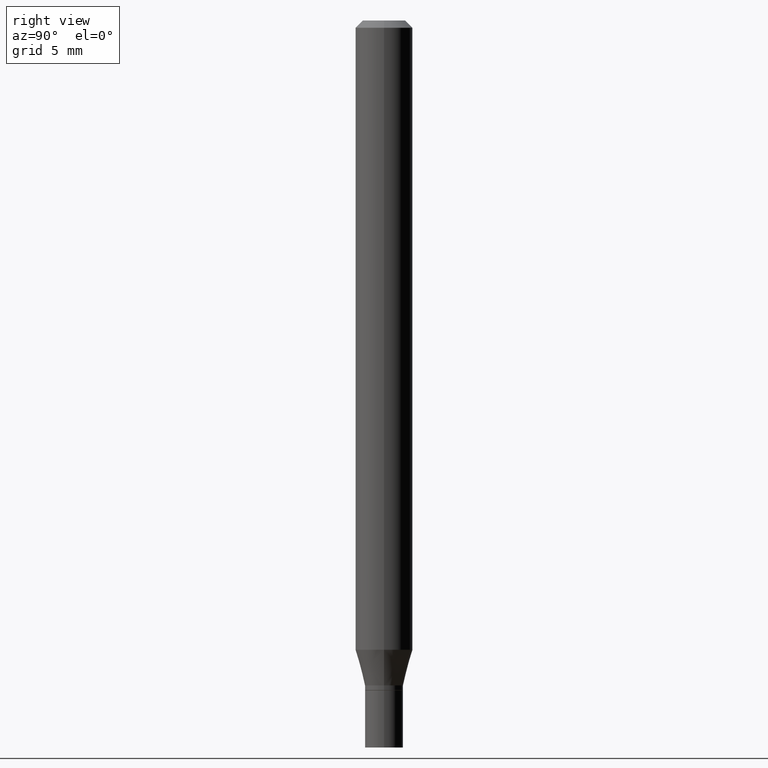
[diagram: clean part render]
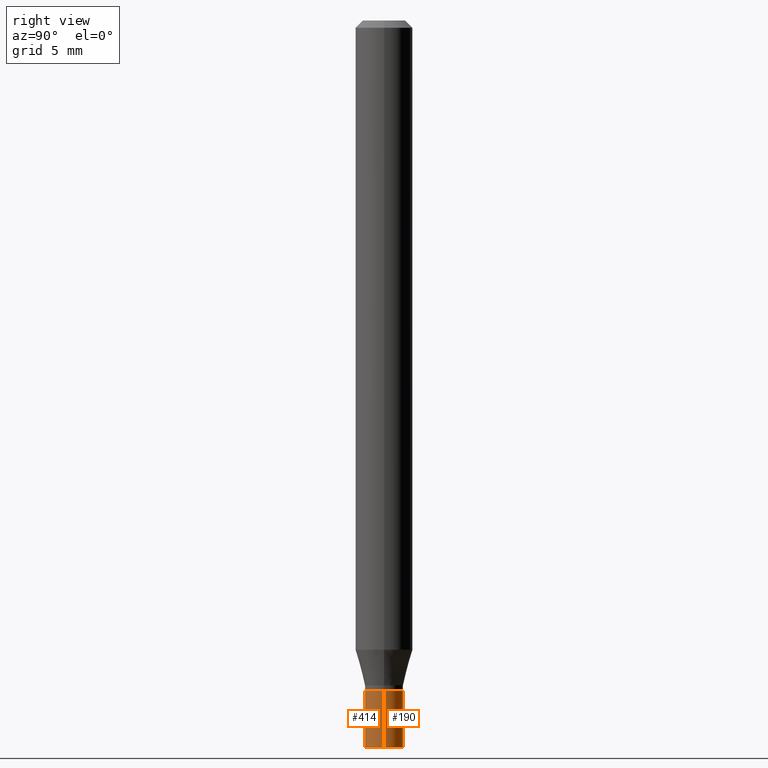
[diagram: same view with one multi-face feature highlighted, each face labeled with its STEP entity id]
A machine part, right view. The highlighted faces form ONE feature: a constant-radius fillet chain: 2 tangent blend faces with common blend radius 0.9995 mm. The faces share edges in the B-rep.
Their STEP definitions:
[1] entity #190 (Cylinder):
#9 = CIRCLE ( 'NONE', #432, 0.03935000000000000303 ) ;
#17 = DIRECTION ( 'NONE',  ( 1.000000000000000000, -6.982962677686269077E-15, 0.000000000000000000 ) ) ;
#23 = CYLINDRICAL_SURFACE ( 'NONE', #193, 0.03935000000000000303 ) ;
#24 = DIRECTION ( 'NONE',  ( 1.000000000000000000, -6.982962677686269077E-15, 0.000000000000000000 ) ) ;
#32 = CARTESIAN_POINT ( 'NONE',  ( -0.03935000000000000303, 2.795985665215994447E-16, -1.935600958015305291E-30 ) ) ;
#53 = DIRECTION ( 'NONE',  ( -2.445468806185136597E-29, 3.491481338843145583E-15, 1.000000000000000000 ) ) ;
#67 = VECTOR ( 'NONE', #204, 39.37007874015748143 ) ;
#86 = CARTESIAN_POINT ( 'NONE',  ( -0.03935000000000000303, -4.751451468684432505E-15, -1.381900000000000128 ) ) ;
#92 = AXIS2_PLACEMENT_3D ( 'NONE', #336, #421, #24 ) ;
#97 = EDGE_LOOP ( 'NONE', ( #214, #158, #449, #155 ) ) ;
#126 = VERTEX_POINT ( 'NONE', #451 ) ;
#155 = ORIENTED_EDGE ( 'NONE', *, *, #418, .F. ) ;
#158 = ORIENTED_EDGE ( 'NONE', *, *, #399, .T. ) ;
#182 = CARTESIAN_POINT ( 'NONE',  ( 3.668203209277704895E-29, -5.237222008264718177E-15, -1.500000000000000222 ) ) ;
#190 = ADVANCED_FACE ( 'NONE', ( #196 ), #23, .T. ) ;
#193 = AXIS2_PLACEMENT_3D ( 'NONE', #372, #53, #337 ) ;
#196 = FACE_OUTER_BOUND ( 'NONE', #97, .T. ) ;
#200 = LINE ( 'NONE', #255, #376 ) ;
#204 = DIRECTION ( 'NONE',  ( -2.445468806185136877E-29, 3.491481338843145188E-15, 1.000000000000000000 ) ) ;
#214 = ORIENTED_EDGE ( 'NONE', *, *, #464, .T. ) ;
#220 = LINE ( 'NONE', #32, #67 ) ;
#235 = CARTESIAN_POINT ( 'NONE',  ( 0.03935000000000000303, -5.512001589631673094E-15, -1.500000000000000222 ) ) ;
#255 = CARTESIAN_POINT ( 'NONE',  ( 0.03935000000000000303, -2.747795813669546211E-16, 1.918775561275701074E-30 ) ) ;
#266 = VERTEX_POINT ( 'NONE', #235 ) ;
#291 = DIRECTION ( 'NONE',  ( -2.445468806185136597E-29, 3.491481338843145583E-15, 1.000000000000000000 ) ) ;
#336 = CARTESIAN_POINT ( 'NONE',  ( 3.379393343267239894E-29, -4.824878062147343257E-15, -1.381900000000000128 ) ) ;
#337 = DIRECTION ( 'NONE',  ( 1.000000000000000000, -6.982962677686266711E-15, 4.876176775795936353E-29 ) ) ;
#372 = CARTESIAN_POINT ( 'NONE',  ( 0.000000000000000000, 0.000000000000000000, 0.000000000000000000 ) ) ;
#376 = VECTOR ( 'NONE', #461, 39.37007874015748143 ) ;
#388 = EDGE_CURVE ( 'NONE', #410, #393, #401, .T. ) ;
#393 = VERTEX_POINT ( 'NONE', #86 ) ;
#399 = EDGE_CURVE ( 'NONE', #126, #393, #220, .T. ) ;
#401 = CIRCLE ( 'NONE', #92, 0.03935000000000000303 ) ;
#410 = VERTEX_POINT ( 'NONE', #455 ) ;
#418 = EDGE_CURVE ( 'NONE', #266, #410, #200, .T. ) ;
#421 = DIRECTION ( 'NONE',  ( -2.445468806185136597E-29, 3.491481338843145583E-15, 1.000000000000000000 ) ) ;
#432 = AXIS2_PLACEMENT_3D ( 'NONE', #182, #291, #17 ) ;
#449 = ORIENTED_EDGE ( 'NONE', *, *, #388, .F. ) ;
#451 = CARTESIAN_POINT ( 'NONE',  ( -0.03935000000000000303, -4.751451468684432505E-15, -1.500000000000000222 ) ) ;
#455 = CARTESIAN_POINT ( 'NONE',  ( 0.03935000000000000303, -5.099657643514298173E-15, -1.381900000000000128 ) ) ;
#461 = DIRECTION ( 'NONE',  ( -2.445468806185136877E-29, 3.491481338843145188E-15, 1.000000000000000000 ) ) ;
#464 = EDGE_CURVE ( 'NONE', #266, #126, #9, .T. ) ;
[2] entity #414 (Cylinder):
#15 = EDGE_LOOP ( 'NONE', ( #122, #462, #269, #20 ) ) ;
#20 = ORIENTED_EDGE ( 'NONE', *, *, #137, .F. ) ;
#27 = DIRECTION ( 'NONE',  ( 1.000000000000000000, -6.982962677686266711E-15, 4.876176775795936353E-29 ) ) ;
#32 = CARTESIAN_POINT ( 'NONE',  ( -0.03935000000000000303, 2.795985665215994447E-16, -1.935600958015305291E-30 ) ) ;
#67 = VECTOR ( 'NONE', #204, 39.37007874015748143 ) ;
#75 = AXIS2_PLACEMENT_3D ( 'NONE', #340, #96, #301 ) ;
#86 = CARTESIAN_POINT ( 'NONE',  ( -0.03935000000000000303, -4.751451468684432505E-15, -1.381900000000000128 ) ) ;
#96 = DIRECTION ( 'NONE',  ( -2.445468806185136597E-29, 3.491481338843145583E-15, 1.000000000000000000 ) ) ;
#108 = FACE_OUTER_BOUND ( 'NONE', #15, .T. ) ;
#118 = EDGE_CURVE ( 'NONE', #126, #266, #168, .T. ) ;
#119 = AXIS2_PLACEMENT_3D ( 'NONE', #308, #447, #268 ) ;
#122 = ORIENTED_EDGE ( 'NONE', *, *, #399, .F. ) ;
#126 = VERTEX_POINT ( 'NONE', #451 ) ;
#137 = EDGE_CURVE ( 'NONE', #393, #410, #349, .T. ) ;
#168 = CIRCLE ( 'NONE', #119, 0.03935000000000000303 ) ;
#174 = CYLINDRICAL_SURFACE ( 'NONE', #319, 0.03935000000000000303 ) ;
#200 = LINE ( 'NONE', #255, #376 ) ;
#204 = DIRECTION ( 'NONE',  ( -2.445468806185136877E-29, 3.491481338843145188E-15, 1.000000000000000000 ) ) ;
#220 = LINE ( 'NONE', #32, #67 ) ;
#235 = CARTESIAN_POINT ( 'NONE',  ( 0.03935000000000000303, -5.512001589631673094E-15, -1.500000000000000222 ) ) ;
#244 = DIRECTION ( 'NONE',  ( -2.445468806185136597E-29, 3.491481338843145583E-15, 1.000000000000000000 ) ) ;
#255 = CARTESIAN_POINT ( 'NONE',  ( 0.03935000000000000303, -2.747795813669546211E-16, 1.918775561275701074E-30 ) ) ;
#266 = VERTEX_POINT ( 'NONE', #235 ) ;
#268 = DIRECTION ( 'NONE',  ( 1.000000000000000000, -6.982962677686269077E-15, 0.000000000000000000 ) ) ;
#269 = ORIENTED_EDGE ( 'NONE', *, *, #418, .T. ) ;
#301 = DIRECTION ( 'NONE',  ( 1.000000000000000000, -6.982962677686269077E-15, 0.000000000000000000 ) ) ;
#308 = CARTESIAN_POINT ( 'NONE',  ( 3.668203209277704895E-29, -5.237222008264718177E-15, -1.500000000000000222 ) ) ;
#319 = AXIS2_PLACEMENT_3D ( 'NONE', #463, #244, #27 ) ;
#340 = CARTESIAN_POINT ( 'NONE',  ( 3.379393343267239894E-29, -4.824878062147343257E-15, -1.381900000000000128 ) ) ;
#349 = CIRCLE ( 'NONE', #75, 0.03935000000000000303 ) ;
#376 = VECTOR ( 'NONE', #461, 39.37007874015748143 ) ;
#393 = VERTEX_POINT ( 'NONE', #86 ) ;
#399 = EDGE_CURVE ( 'NONE', #126, #393, #220, .T. ) ;
#410 = VERTEX_POINT ( 'NONE', #455 ) ;
#414 = ADVANCED_FACE ( 'NONE', ( #108 ), #174, .T. ) ;
#418 = EDGE_CURVE ( 'NONE', #266, #410, #200, .T. ) ;
#447 = DIRECTION ( 'NONE',  ( -2.445468806185136597E-29, 3.491481338843145583E-15, 1.000000000000000000 ) ) ;
#451 = CARTESIAN_POINT ( 'NONE',  ( -0.03935000000000000303, -4.751451468684432505E-15, -1.500000000000000222 ) ) ;
#455 = CARTESIAN_POINT ( 'NONE',  ( 0.03935000000000000303, -5.099657643514298173E-15, -1.381900000000000128 ) ) ;
#461 = DIRECTION ( 'NONE',  ( -2.445468806185136877E-29, 3.491481338843145188E-15, 1.000000000000000000 ) ) ;
#462 = ORIENTED_EDGE ( 'NONE', *, *, #118, .T. ) ;
#463 = CARTESIAN_POINT ( 'NONE',  ( 0.000000000000000000, 0.000000000000000000, 0.000000000000000000 ) ) ;